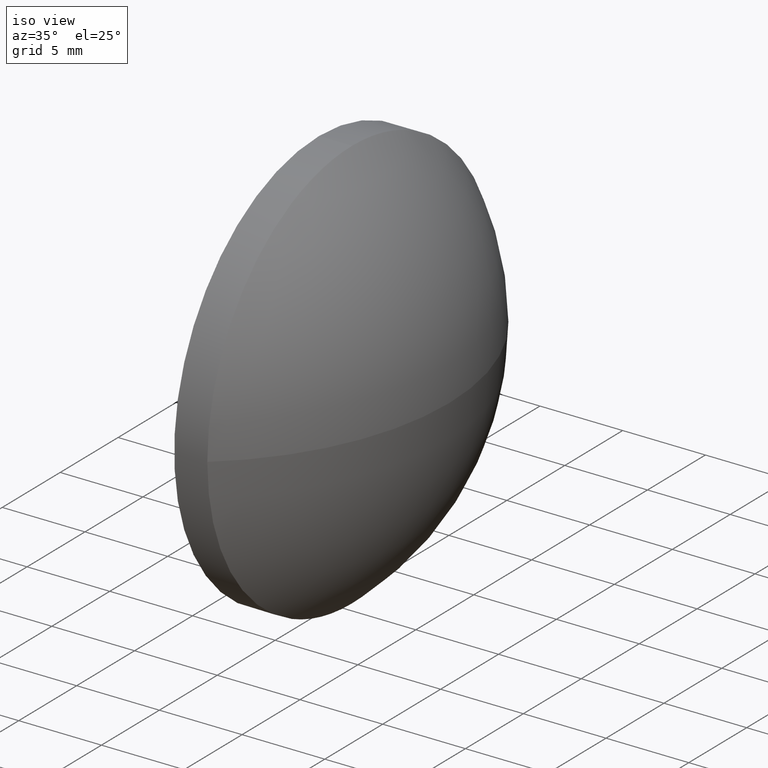
[diagram: clean part render]
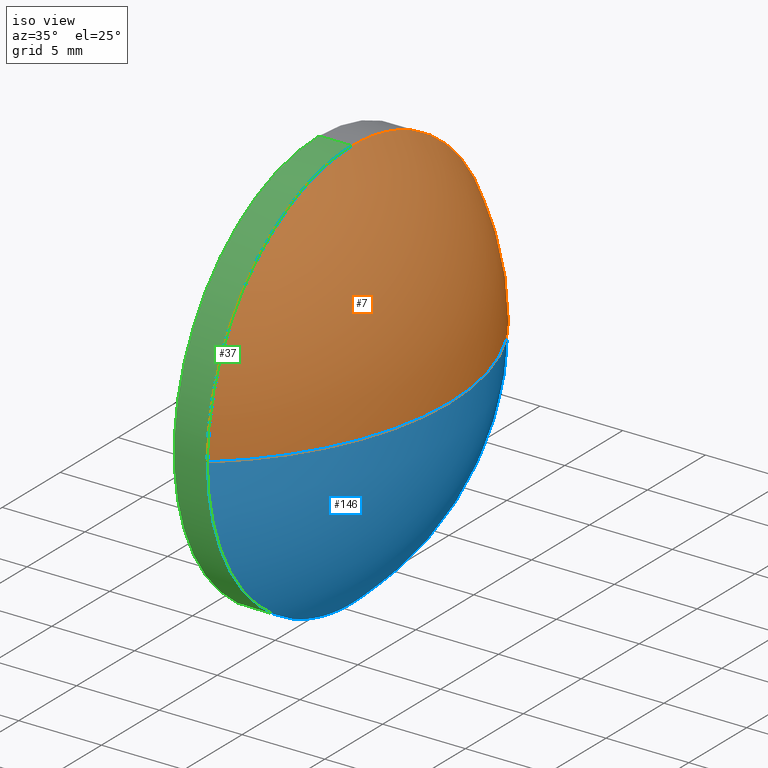
[diagram: same view with three faces highlighted in distinct colors, each labeled with its STEP entity id]
A machine part, iso view with three faces highlighted in distinct colors.
Their STEP definitions:

[orange] entity #7 — the highlighted spherical surface has radius 16.2619 mm.
#1 = VERTEX_POINT ( 'NONE', #4 ) ;
#4 = CARTESIAN_POINT ( 'NONE',  ( 411.3082929316683500, -17.72920143275539900, 0.0000000000000000000 ) ) ;
#7 = ADVANCED_FACE ( 'NONE', ( #71 ), #109, .T. ) ;
#10 = VERTEX_POINT ( 'NONE', #104 ) ;
#12 = AXIS2_PLACEMENT_3D ( 'NONE', #149, #67, #68 ) ;
#16 = DIRECTION ( 'NONE',  ( 0.0000000000000000000, 0.0000000000000000000, 1.000000000000000000 ) ) ;
#18 = DIRECTION ( 'NONE',  ( -1.000000000000000000, -0.0000000000000000000, -0.0000000000000000000 ) ) ;
#22 = CARTESIAN_POINT ( 'NONE',  ( 400.9063816688697000, -5.229201432755405500, 0.0000000000000000000 ) ) ;
#32 = CARTESIAN_POINT ( 'NONE',  ( 411.3082929316683500, -5.229201432755417000, 0.0000000000000000000 ) ) ;
#47 = DIRECTION ( 'NONE',  ( 0.0000000000000000000, -1.000000000000000000, 0.0000000000000000000 ) ) ;
#53 = CARTESIAN_POINT ( 'NONE',  ( 411.3082929316683500, -5.229201432755417000, 12.50000000000000000 ) ) ;
#59 = AXIS2_PLACEMENT_3D ( 'NONE', #176, #18, #16 ) ;
#67 = DIRECTION ( 'NONE',  ( 0.0000000000000000000, -1.224646799147353200E-016, 1.000000000000000000 ) ) ;
#68 = DIRECTION ( 'NONE',  ( 0.0000000000000000000, -1.000000000000000000, -1.224646799147353000E-016 ) ) ;
#71 = FACE_OUTER_BOUND ( 'NONE', #153, .T. ) ;
#72 = EDGE_CURVE ( 'NONE', #1, #180, #175, .T. ) ;
#74 = DIRECTION ( 'NONE',  ( 0.0000000000000000000, 0.0000000000000000000, 1.000000000000000000 ) ) ;
#75 = ORIENTED_EDGE ( 'NONE', *, *, #72, .F. ) ;
#84 = EDGE_CURVE ( 'NONE', #10, #1, #156, .T. ) ;
#89 = CARTESIAN_POINT ( 'NONE',  ( 411.3082929316683500, 7.270798567244581200, 1.530808498934189700E-015 ) ) ;
#90 = VERTEX_POINT ( 'NONE', #89 ) ;
#93 = CIRCLE ( 'NONE', #59, 12.50000000000000000 ) ;
#100 = ORIENTED_EDGE ( 'NONE', *, *, #183, .F. ) ;
#104 = CARTESIAN_POINT ( 'NONE',  ( 417.1682929316683600, -5.229201432755406400, 0.0000000000000000000 ) ) ;
#109 = SPHERICAL_SURFACE ( 'NONE', #155, 16.26191126279863800 ) ;
#112 = ORIENTED_EDGE ( 'NONE', *, *, #145, .T. ) ;
#124 = AXIS2_PLACEMENT_3D ( 'NONE', #32, #127, #147 ) ;
#127 = DIRECTION ( 'NONE',  ( -1.000000000000000000, -0.0000000000000000000, -0.0000000000000000000 ) ) ;
#132 = DIRECTION ( 'NONE',  ( -1.000000000000000000, 0.0000000000000000000, 0.0000000000000000000 ) ) ;
#133 = CIRCLE ( 'NONE', #12, 16.26191126279864100 ) ;
#138 = ORIENTED_EDGE ( 'NONE', *, *, #84, .F. ) ;
#145 = EDGE_CURVE ( 'NONE', #10, #90, #133, .T. ) ;
#147 = DIRECTION ( 'NONE',  ( 0.0000000000000000000, 0.0000000000000000000, 1.000000000000000000 ) ) ;
#149 = CARTESIAN_POINT ( 'NONE',  ( 400.9063816688697000, -5.229201432755405500, 0.0000000000000000000 ) ) ;
#152 = AXIS2_PLACEMENT_3D ( 'NONE', #22, #168, #132 ) ;
#153 = EDGE_LOOP ( 'NONE', ( #138, #112, #100, #75 ) ) ;
#155 = AXIS2_PLACEMENT_3D ( 'NONE', #159, #74, #47 ) ;
#156 = CIRCLE ( 'NONE', #152, 16.26191126279863400 ) ;
#159 = CARTESIAN_POINT ( 'NONE',  ( 400.9063816688697000, -5.229201432755405500, 0.0000000000000000000 ) ) ;
#168 = DIRECTION ( 'NONE',  ( 0.0000000000000000000, 0.0000000000000000000, -1.000000000000000000 ) ) ;
#175 = CIRCLE ( 'NONE', #124, 12.50000000000000000 ) ;
#176 = CARTESIAN_POINT ( 'NONE',  ( 411.3082929316683500, -5.229201432755417000, 0.0000000000000000000 ) ) ;
#180 = VERTEX_POINT ( 'NONE', #53 ) ;
#183 = EDGE_CURVE ( 'NONE', #180, #90, #93, .T. ) ;

[blue] entity #146 — the highlighted spherical surface has radius 16.2619 mm.
#1 = VERTEX_POINT ( 'NONE', #4 ) ;
#4 = CARTESIAN_POINT ( 'NONE',  ( 411.3082929316683500, -17.72920143275539900, 0.0000000000000000000 ) ) ;
#8 = CARTESIAN_POINT ( 'NONE',  ( 411.3082929316683500, -5.229201432755415300, -12.50000000000000000 ) ) ;
#10 = VERTEX_POINT ( 'NONE', #104 ) ;
#12 = AXIS2_PLACEMENT_3D ( 'NONE', #149, #67, #68 ) ;
#20 = CARTESIAN_POINT ( 'NONE',  ( 400.9063816688697000, -5.229201432755405500, 0.0000000000000000000 ) ) ;
#22 = CARTESIAN_POINT ( 'NONE',  ( 400.9063816688697000, -5.229201432755405500, 0.0000000000000000000 ) ) ;
#25 = ORIENTED_EDGE ( 'NONE', *, *, #33, .F. ) ;
#27 = ORIENTED_EDGE ( 'NONE', *, *, #84, .T. ) ;
#33 = EDGE_CURVE ( 'NONE', #90, #151, #98, .T. ) ;
#43 = ORIENTED_EDGE ( 'NONE', *, *, #145, .F. ) ;
#50 = DIRECTION ( 'NONE',  ( 0.0000000000000000000, 0.0000000000000000000, 1.000000000000000000 ) ) ;
#54 = FACE_OUTER_BOUND ( 'NONE', #116, .T. ) ;
#57 = AXIS2_PLACEMENT_3D ( 'NONE', #131, #78, #50 ) ;
#61 = DIRECTION ( 'NONE',  ( 0.0000000000000000000, 0.0000000000000000000, 1.000000000000000000 ) ) ;
#62 = CIRCLE ( 'NONE', #57, 12.50000000000000000 ) ;
#64 = DIRECTION ( 'NONE',  ( 0.0000000000000000000, -1.000000000000000000, 0.0000000000000000000 ) ) ;
#67 = DIRECTION ( 'NONE',  ( 0.0000000000000000000, -1.224646799147353200E-016, 1.000000000000000000 ) ) ;
#68 = DIRECTION ( 'NONE',  ( 0.0000000000000000000, -1.000000000000000000, -1.224646799147353000E-016 ) ) ;
#78 = DIRECTION ( 'NONE',  ( -1.000000000000000000, -0.0000000000000000000, -0.0000000000000000000 ) ) ;
#82 = EDGE_CURVE ( 'NONE', #151, #1, #62, .T. ) ;
#84 = EDGE_CURVE ( 'NONE', #10, #1, #156, .T. ) ;
#89 = CARTESIAN_POINT ( 'NONE',  ( 411.3082929316683500, 7.270798567244581200, 1.530808498934189700E-015 ) ) ;
#90 = VERTEX_POINT ( 'NONE', #89 ) ;
#98 = CIRCLE ( 'NONE', #139, 12.50000000000000000 ) ;
#104 = CARTESIAN_POINT ( 'NONE',  ( 417.1682929316683600, -5.229201432755406400, 0.0000000000000000000 ) ) ;
#115 = DIRECTION ( 'NONE',  ( -1.000000000000000000, -0.0000000000000000000, -0.0000000000000000000 ) ) ;
#116 = EDGE_LOOP ( 'NONE', ( #43, #27, #125, #25 ) ) ;
#125 = ORIENTED_EDGE ( 'NONE', *, *, #82, .F. ) ;
#129 = SPHERICAL_SURFACE ( 'NONE', #174, 16.26191126279863800 ) ;
#130 = CARTESIAN_POINT ( 'NONE',  ( 411.3082929316683500, -5.229201432755417000, 0.0000000000000000000 ) ) ;
#131 = CARTESIAN_POINT ( 'NONE',  ( 411.3082929316683500, -5.229201432755417000, 0.0000000000000000000 ) ) ;
#132 = DIRECTION ( 'NONE',  ( -1.000000000000000000, 0.0000000000000000000, 0.0000000000000000000 ) ) ;
#133 = CIRCLE ( 'NONE', #12, 16.26191126279864100 ) ;
#139 = AXIS2_PLACEMENT_3D ( 'NONE', #130, #115, #61 ) ;
#145 = EDGE_CURVE ( 'NONE', #10, #90, #133, .T. ) ;
#146 = ADVANCED_FACE ( 'NONE', ( #54 ), #129, .T. ) ;
#148 = DIRECTION ( 'NONE',  ( 0.0000000000000000000, 0.0000000000000000000, 1.000000000000000000 ) ) ;
#149 = CARTESIAN_POINT ( 'NONE',  ( 400.9063816688697000, -5.229201432755405500, 0.0000000000000000000 ) ) ;
#151 = VERTEX_POINT ( 'NONE', #8 ) ;
#152 = AXIS2_PLACEMENT_3D ( 'NONE', #22, #168, #132 ) ;
#156 = CIRCLE ( 'NONE', #152, 16.26191126279863400 ) ;
#168 = DIRECTION ( 'NONE',  ( 0.0000000000000000000, 0.0000000000000000000, -1.000000000000000000 ) ) ;
#174 = AXIS2_PLACEMENT_3D ( 'NONE', #20, #148, #64 ) ;

[green] entity #37 — the highlighted cylindrical surface (partial cylindrical patch) has radius 12.5 mm, axis along (-1, -0, -0).
#1 = VERTEX_POINT ( 'NONE', #4 ) ;
#3 = CIRCLE ( 'NONE', #97, 12.50000000000000000 ) ;
#4 = CARTESIAN_POINT ( 'NONE',  ( 411.3082929316683500, -17.72920143275539900, 0.0000000000000000000 ) ) ;
#5 = CYLINDRICAL_SURFACE ( 'NONE', #46, 12.50000000000000000 ) ;
#8 = CARTESIAN_POINT ( 'NONE',  ( 411.3082929316683500, -5.229201432755415300, -12.50000000000000000 ) ) ;
#13 = EDGE_CURVE ( 'NONE', #107, #66, #3, .T. ) ;
#31 = ORIENTED_EDGE ( 'NONE', *, *, #13, .F. ) ;
#32 = CARTESIAN_POINT ( 'NONE',  ( 411.3082929316683500, -5.229201432755417000, 0.0000000000000000000 ) ) ;
#36 = CARTESIAN_POINT ( 'NONE',  ( 407.2791853532313600, -5.229201432755415300, -12.50000000000000000 ) ) ;
#37 = ADVANCED_FACE ( 'NONE', ( #102 ), #5, .T. ) ;
#46 = AXIS2_PLACEMENT_3D ( 'NONE', #161, #76, #49 ) ;
#49 = DIRECTION ( 'NONE',  ( 0.0000000000000000000, 0.0000000000000000000, 1.000000000000000000 ) ) ;
#50 = DIRECTION ( 'NONE',  ( 0.0000000000000000000, 0.0000000000000000000, 1.000000000000000000 ) ) ;
#53 = CARTESIAN_POINT ( 'NONE',  ( 411.3082929316683500, -5.229201432755417000, 12.50000000000000000 ) ) ;
#55 = ORIENTED_EDGE ( 'NONE', *, *, #82, .T. ) ;
#57 = AXIS2_PLACEMENT_3D ( 'NONE', #131, #78, #50 ) ;
#62 = CIRCLE ( 'NONE', #57, 12.50000000000000000 ) ;
#65 = CARTESIAN_POINT ( 'NONE',  ( 409.3082929316683500, -5.229201432755415300, -12.50000000000000000 ) ) ;
#66 = VERTEX_POINT ( 'NONE', #101 ) ;
#69 = LINE ( 'NONE', #36, #169 ) ;
#72 = EDGE_CURVE ( 'NONE', #1, #180, #175, .T. ) ;
#76 = DIRECTION ( 'NONE',  ( -1.000000000000000000, -0.0000000000000000000, -0.0000000000000000000 ) ) ;
#77 = DIRECTION ( 'NONE',  ( 0.0000000000000000000, 0.0000000000000000000, 1.000000000000000000 ) ) ;
#78 = DIRECTION ( 'NONE',  ( -1.000000000000000000, -0.0000000000000000000, -0.0000000000000000000 ) ) ;
#81 = ORIENTED_EDGE ( 'NONE', *, *, #150, .F. ) ;
#82 = EDGE_CURVE ( 'NONE', #151, #1, #62, .T. ) ;
#85 = EDGE_LOOP ( 'NONE', ( #81, #55, #94, #171, #31 ) ) ;
#91 = DIRECTION ( 'NONE',  ( -1.000000000000000000, -0.0000000000000000000, -0.0000000000000000000 ) ) ;
#92 = DIRECTION ( 'NONE',  ( -1.000000000000000000, -0.0000000000000000000, -0.0000000000000000000 ) ) ;
#94 = ORIENTED_EDGE ( 'NONE', *, *, #72, .T. ) ;
#97 = AXIS2_PLACEMENT_3D ( 'NONE', #164, #177, #77 ) ;
#101 = CARTESIAN_POINT ( 'NONE',  ( 409.3082929316683500, -5.229201432755417000, 12.50000000000000000 ) ) ;
#102 = FACE_OUTER_BOUND ( 'NONE', #85, .T. ) ;
#107 = VERTEX_POINT ( 'NONE', #65 ) ;
#122 = LINE ( 'NONE', #182, #154 ) ;
#124 = AXIS2_PLACEMENT_3D ( 'NONE', #32, #127, #147 ) ;
#127 = DIRECTION ( 'NONE',  ( -1.000000000000000000, -0.0000000000000000000, -0.0000000000000000000 ) ) ;
#131 = CARTESIAN_POINT ( 'NONE',  ( 411.3082929316683500, -5.229201432755417000, 0.0000000000000000000 ) ) ;
#136 = EDGE_CURVE ( 'NONE', #180, #66, #122, .T. ) ;
#147 = DIRECTION ( 'NONE',  ( 0.0000000000000000000, 0.0000000000000000000, 1.000000000000000000 ) ) ;
#150 = EDGE_CURVE ( 'NONE', #151, #107, #69, .T. ) ;
#151 = VERTEX_POINT ( 'NONE', #8 ) ;
#154 = VECTOR ( 'NONE', #91, 1000.000000000000000 ) ;
#161 = CARTESIAN_POINT ( 'NONE',  ( 407.2791853532313600, -5.229201432755417000, 0.0000000000000000000 ) ) ;
#164 = CARTESIAN_POINT ( 'NONE',  ( 409.3082929316683500, -5.229201432755417000, 0.0000000000000000000 ) ) ;
#169 = VECTOR ( 'NONE', #92, 1000.000000000000000 ) ;
#171 = ORIENTED_EDGE ( 'NONE', *, *, #136, .T. ) ;
#175 = CIRCLE ( 'NONE', #124, 12.50000000000000000 ) ;
#177 = DIRECTION ( 'NONE',  ( -1.000000000000000000, -0.0000000000000000000, -0.0000000000000000000 ) ) ;
#180 = VERTEX_POINT ( 'NONE', #53 ) ;
#182 = CARTESIAN_POINT ( 'NONE',  ( 407.2791853532313600, -5.229201432755417000, 12.50000000000000000 ) ) ;